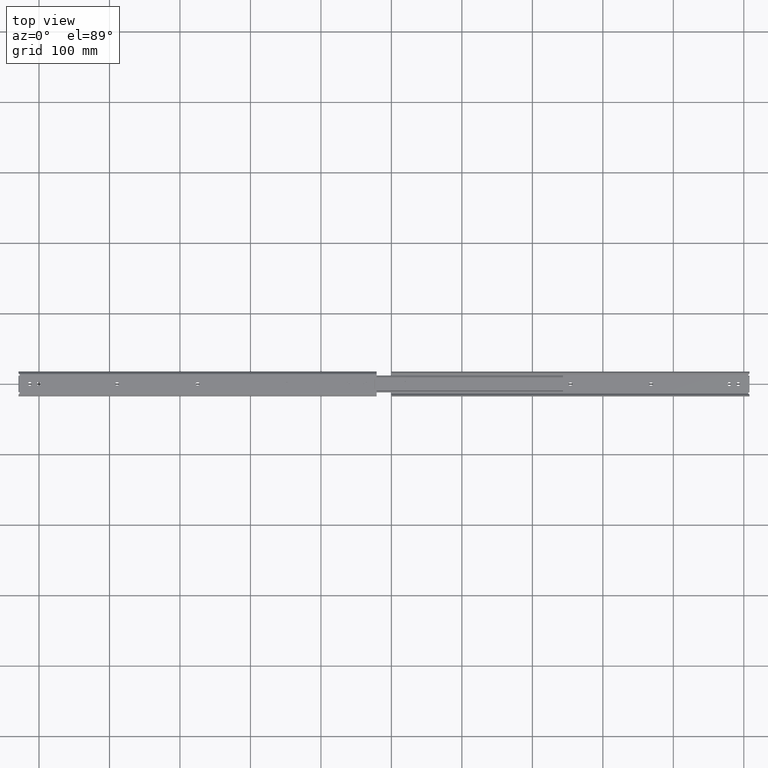
[diagram: clean part render]
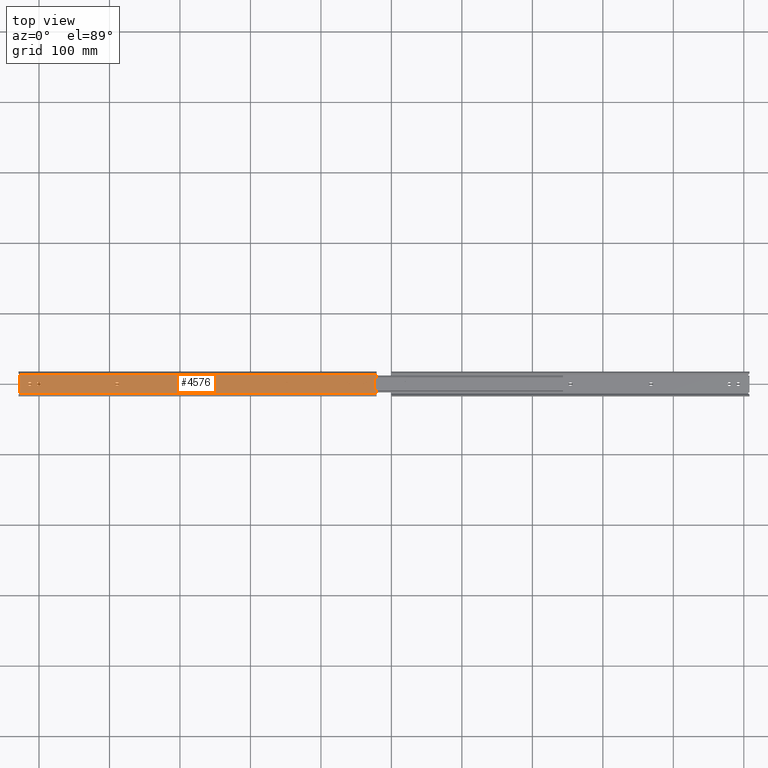
[diagram: same view with one face highlighted and labeled with its STEP entity id]
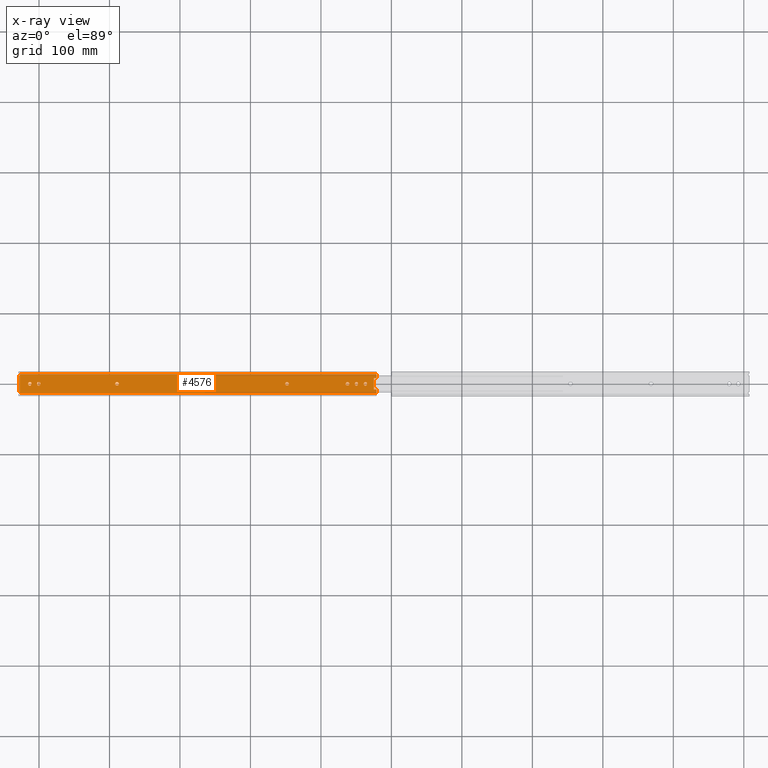
[diagram: x-ray of the same camera — body ghosted, the highlighted face saturated]
A machine part, top view. The second image highlights one B-rep face of the part: STEP entity #4576.
The next image is the same camera in x-ray: the body ghosted, the highlighted face saturated — about 0% of this face is hidden behind the body in this view.
In plain terms, the highlighted planar face has unit normal (0, 0, -1).
Its self-contained STEP definition (entity closure, byte-faithful):
#2 = CARTESIAN_POINT ( 'NONE',  ( 253.5999999999999900, 2.249999999999965800, -4.792173602385929600E-014 ) ) ;
#11 = CIRCLE ( 'NONE', #2264, 2.250000000000001800 ) ;
#26 = CARTESIAN_POINT ( 'NONE',  ( 3.799999999999999400, 7.000000000000000000, 7.958043946043602500E-014 ) ) ;
#30 = EDGE_CURVE ( 'NONE', #1849, #831, #4135, .T. ) ;
#38 = ORIENTED_EDGE ( 'NONE', *, *, #3426, .T. ) ;
#72 = CIRCLE ( 'NONE', #1924, 2.249999999999974200 ) ;
#108 = LINE ( 'NONE', #1090, #3909 ) ;
#114 = VECTOR ( 'NONE', #4303, 1000.000000000000000 ) ;
#117 = AXIS2_PLACEMENT_3D ( 'NONE', #971, #1335, #1395 ) ;
#120 = CARTESIAN_POINT ( 'NONE',  ( 43.95000000000000300, 3.337652803933819400E-015, -4.792173602385929600E-014 ) ) ;
#128 = EDGE_CURVE ( 'NONE', #2879, #1849, #4778, .T. ) ;
#134 = CARTESIAN_POINT ( 'NONE',  ( 368.7000000000000500, 5.082535335627669000E-014, -4.792173602385929600E-014 ) ) ;
#155 = EDGE_LOOP ( 'NONE', ( #622, #2467, #4307, #3353 ) ) ;
#171 = CARTESIAN_POINT ( 'NONE',  ( 253.5999999999999900, -1.540743955509788700E-030, -4.792173602385929600E-014 ) ) ;
#176 = CARTESIAN_POINT ( 'NONE',  ( 481.6500000000001500, 0.4000000000000903900, -4.792173602385929600E-014 ) ) ;
#177 = LINE ( 'NONE', #2938, #3979 ) ;
#202 = EDGE_CURVE ( 'NONE', #3458, #4721, #616, .T. ) ;
#203 = EDGE_CURVE ( 'NONE', #4127, #917, #3452, .T. ) ;
#204 = VERTEX_POINT ( 'NONE', #2560 ) ;
#208 = LINE ( 'NONE', #3602, #2181 ) ;
#235 = VECTOR ( 'NONE', #2144, 1000.000000000000000 ) ;
#250 = DIRECTION ( 'NONE',  ( 0.0000000000000000000, 0.0000000000000000000, 1.000000000000000000 ) ) ;
#253 = ORIENTED_EDGE ( 'NONE', *, *, #480, .T. ) ;
#254 = CARTESIAN_POINT ( 'NONE',  ( 508.0000000000000000, 13.34999999999964600, 8.001412032943022700E-014 ) ) ;
#261 = DIRECTION ( 'NONE',  ( 1.000000000000000000, 0.0000000000000000000, 0.0000000000000000000 ) ) ;
#266 = ORIENTED_EDGE ( 'NONE', *, *, #298, .T. ) ;
#271 = EDGE_LOOP ( 'NONE', ( #2364, #396, #2303, #970 ) ) ;
#275 = DIRECTION ( 'NONE',  ( 1.000000000000000000, 0.0000000000000000000, 0.0000000000000000000 ) ) ;
#280 = DIRECTION ( 'NONE',  ( 1.000000000000000000, 0.0000000000000000000, 0.0000000000000000000 ) ) ;
#294 = AXIS2_PLACEMENT_3D ( 'NONE', #4329, #2135, #4705 ) ;
#298 = EDGE_CURVE ( 'NONE', #2602, #4721, #2118, .T. ) ;
#311 = CARTESIAN_POINT ( 'NONE',  ( 481.6500000000001500, -0.3999999999999602800, -4.792173602385929600E-014 ) ) ;
#317 = DIRECTION ( 'NONE',  ( 0.0000000000000000000, 0.0000000000000000000, 1.000000000000000000 ) ) ;
#344 = LINE ( 'NONE', #254, #114 ) ;
#348 = LINE ( 'NONE', #858, #4266 ) ;
#354 = DIRECTION ( 'NONE',  ( 1.000000000000000000, 0.0000000000000000000, 0.0000000000000000000 ) ) ;
#355 = DIRECTION ( 'NONE',  ( 1.000000000000000000, 0.0000000000000000000, 0.0000000000000000000 ) ) ;
#357 = DIRECTION ( 'NONE',  ( 1.000000000000000000, 0.0000000000000000000, 0.0000000000000000000 ) ) ;
#380 = VERTEX_POINT ( 'NONE', #1041 ) ;
#381 = CARTESIAN_POINT ( 'NONE',  ( 477.1500000000000900, -0.4000000000000331100, -2.397426826350231100E-015 ) ) ;
#388 = VERTEX_POINT ( 'NONE', #381 ) ;
#396 = ORIENTED_EDGE ( 'NONE', *, *, #4519, .T. ) ;
#407 = CARTESIAN_POINT ( 'NONE',  ( 40.89999999999999100, 2.249999999999998200, -4.792173602385929600E-014 ) ) ;
#414 = DIRECTION ( 'NONE',  ( -1.000000000000000000, -0.0000000000000000000, -0.0000000000000000000 ) ) ;
#415 = CARTESIAN_POINT ( 'NONE',  ( 368.7000000000001000, 2.249999999999948900, -4.792173602385929600E-014 ) ) ;
#428 = VERTEX_POINT ( 'NONE', #3471 ) ;
#434 = DIRECTION ( 'NONE',  ( 0.0000000000000000000, 0.0000000000000000000, 1.000000000000000000 ) ) ;
#436 = EDGE_LOOP ( 'NONE', ( #693, #2832, #4311, #2348, #2418 ) ) ;
#449 = VERTEX_POINT ( 'NONE', #415 ) ;
#475 = FACE_OUTER_BOUND ( 'NONE', #4028, .T. ) ;
#480 = EDGE_CURVE ( 'NONE', #449, #559, #4399, .T. ) ;
#503 = VECTOR ( 'NONE', #2643, 1000.000000000000000 ) ;
#548 = EDGE_CURVE ( 'NONE', #1889, #4665, #1135, .T. ) ;
#559 = VERTEX_POINT ( 'NONE', #4225 ) ;
#574 = VERTEX_POINT ( 'NONE', #2656 ) ;
#581 = CIRCLE ( 'NONE', #3830, 2.250000000000001800 ) ;
#589 = CIRCLE ( 'NONE', #3469, 2.249999999999974200 ) ;
#592 = FACE_BOUND ( 'NONE', #436, .T. ) ;
#593 = VERTEX_POINT ( 'NONE', #1684 ) ;
#595 = CARTESIAN_POINT ( 'NONE',  ( 26.34999999999998400, -0.3999999999999968600, -2.397426826350014100E-015 ) ) ;
#596 = LINE ( 'NONE', #176, #2572 ) ;
#608 = VERTEX_POINT ( 'NONE', #3393 ) ;
#609 = CARTESIAN_POINT ( 'NONE',  ( 479.4000000000000300, -0.3999999999999614400, -4.792173602385929600E-014 ) ) ;
#612 = EDGE_CURVE ( 'NONE', #917, #4246, #11, .T. ) ;
#616 = CIRCLE ( 'NONE', #117, 1.300000000000078900 ) ;
#618 = CARTESIAN_POINT ( 'NONE',  ( 127.4000000000000200, 1.230082464744604100E-014, -4.792173602385929600E-014 ) ) ;
#622 = ORIENTED_EDGE ( 'NONE', *, *, #4447, .T. ) ;
#635 = DIRECTION ( 'NONE',  ( 0.0000000000000000000, 0.0000000000000000000, 1.000000000000000000 ) ) ;
#651 = DIRECTION ( 'NONE',  ( 1.000000000000000000, 0.0000000000000000000, 0.0000000000000000000 ) ) ;
#673 = ORIENTED_EDGE ( 'NONE', *, *, #2287, .T. ) ;
#693 = ORIENTED_EDGE ( 'NONE', *, *, #2033, .T. ) ;
#749 = VERTEX_POINT ( 'NONE', #4681 ) ;
#767 = LINE ( 'NONE', #4751, #4564 ) ;
#769 = VECTOR ( 'NONE', #357, 1000.000000000000000 ) ;
#781 = DIRECTION ( 'NONE',  ( -0.0000000000000000000, -1.000000000000000000, -5.993567065875081600E-015 ) ) ;
#805 = AXIS2_PLACEMENT_3D ( 'NONE', #2545, #317, #2926 ) ;
#824 = CARTESIAN_POINT ( 'NONE',  ( 18.15000000000000600, 0.3999999999999995800, -4.792173602385929600E-014 ) ) ;
#831 = VERTEX_POINT ( 'NONE', #3970 ) ;
#836 = AXIS2_PLACEMENT_3D ( 'NONE', #4782, #2586, #355 ) ;
#841 = CARTESIAN_POINT ( 'NONE',  ( 370.9499999999999900, 5.082535335627669000E-014, -4.792173602385929600E-014 ) ) ;
#843 = DIRECTION ( 'NONE',  ( 1.000000000000000000, 0.0000000000000000000, 0.0000000000000000000 ) ) ;
#855 = DIRECTION ( 'NONE',  ( -0.0000000000000000000, 1.000000000000000000, -0.0000000000000000000 ) ) ;
#858 = CARTESIAN_POINT ( 'NONE',  ( 126.5999999999999900, -2.250000000000006700, -4.792173602385929600E-014 ) ) ;
#880 = AXIS2_PLACEMENT_3D ( 'NONE', #4702, #2497, #280 ) ;
#888 = CIRCLE ( 'NONE', #3456, 2.249999999999974200 ) ;
#891 = DIRECTION ( 'NONE',  ( 1.000000000000000000, 0.0000000000000000000, 0.0000000000000000000 ) ) ;
#917 = VERTEX_POINT ( 'NONE', #595 ) ;
#941 = CIRCLE ( 'NONE', #3609, 2.250000000000001800 ) ;
#955 = CARTESIAN_POINT ( 'NONE',  ( 30.85000000000000100, -0.3999999999999980200, -4.792173602385929600E-014 ) ) ;
#968 = ORIENTED_EDGE ( 'NONE', *, *, #1396, .T. ) ;
#970 = ORIENTED_EDGE ( 'NONE', *, *, #30, .T. ) ;
#971 = CARTESIAN_POINT ( 'NONE',  ( 507.5000000000007400, -12.79999999999966100, 7.958043946043602500E-014 ) ) ;
#980 = CARTESIAN_POINT ( 'NONE',  ( 368.7000000000000500, -2.250000000000050600, -1.348552589821923700E-014 ) ) ;
#990 = EDGE_CURVE ( 'NONE', #428, #3895, #2214, .T. ) ;
#991 = DIRECTION ( 'NONE',  ( 1.000000000000000000, 0.0000000000000000000, 0.0000000000000000000 ) ) ;
#1000 = DIRECTION ( 'NONE',  ( 1.000000000000000000, 0.0000000000000000000, 0.0000000000000000000 ) ) ;
#1016 = DIRECTION ( 'NONE',  ( 1.000000000000000000, 0.0000000000000000000, 0.0000000000000000000 ) ) ;
#1037 = ORIENTED_EDGE ( 'NONE', *, *, #202, .F. ) ;
#1041 = CARTESIAN_POINT ( 'NONE',  ( 253.5999999999999900, -2.250000000000033800, -4.792173602385929600E-014 ) ) ;
#1045 = DIRECTION ( 'NONE',  ( 0.0000000000000000000, 0.0000000000000000000, 1.000000000000000000 ) ) ;
#1082 = VERTEX_POINT ( 'NONE', #311 ) ;
#1090 = CARTESIAN_POINT ( 'NONE',  ( 126.5999999999999900, 2.249999999999992900, -4.792173602385929600E-014 ) ) ;
#1095 = DIRECTION ( 'NONE',  ( -0.0000000000000000000, 1.000000000000000000, -0.0000000000000000000 ) ) ;
#1102 = CARTESIAN_POINT ( 'NONE',  ( 477.1500000000000900, 0.4000000000000338300, -4.792173602385929600E-014 ) ) ;
#1107 = VERTEX_POINT ( 'NONE', #3323 ) ;
#1109 = ORIENTED_EDGE ( 'NONE', *, *, #2384, .T. ) ;
#1128 = CIRCLE ( 'NONE', #1731, 2.250000000000029800 ) ;
#1134 = CARTESIAN_POINT ( 'NONE',  ( 41.70000000000001700, -2.250000000000001800, -1.348552589821894300E-014 ) ) ;
#1135 = CIRCLE ( 'NONE', #1279, 2.250000000000029800 ) ;
#1193 = VECTOR ( 'NONE', #855, 1000.000000000000000 ) ;
#1194 = VECTOR ( 'NONE', #1095, 1000.000000000000000 ) ;
#1235 = CIRCLE ( 'NONE', #2798, 2.250000000000001800 ) ;
#1236 = CIRCLE ( 'NONE', #3946, 2.249999999999974200 ) ;
#1276 = ORIENTED_EDGE ( 'NONE', *, *, #2611, .T. ) ;
#1279 = AXIS2_PLACEMENT_3D ( 'NONE', #3803, #3883, #2329 ) ;
#1281 = EDGE_CURVE ( 'NONE', #831, #574, #2273, .T. ) ;
#1314 = EDGE_LOOP ( 'NONE', ( #1276, #2442, #2370, #2990, #3356 ) ) ;
#1324 = CARTESIAN_POINT ( 'NONE',  ( 0.0000000000000000000, -7.999999999999998200, -4.794853652700064100E-014 ) ) ;
#1325 = ORIENTED_EDGE ( 'NONE', *, *, #1894, .F. ) ;
#1333 = ORIENTED_EDGE ( 'NONE', *, *, #2290, .T. ) ;
#1335 = DIRECTION ( 'NONE',  ( -0.0000000000000000000, -0.0000000000000000000, -1.000000000000000000 ) ) ;
#1365 = VERTEX_POINT ( 'NONE', #2341 ) ;
#1368 = AXIS2_PLACEMENT_3D ( 'NONE', #3261, #1045, #3613 ) ;
#1379 = VERTEX_POINT ( 'NONE', #120 ) ;
#1385 = EDGE_CURVE ( 'NONE', #559, #4545, #4509, .T. ) ;
#1395 = DIRECTION ( 'NONE',  ( 1.000000000000000000, 0.0000000000000000000, 0.0000000000000000000 ) ) ;
#1396 = EDGE_CURVE ( 'NONE', #3895, #380, #589, .T. ) ;
#1404 = DIRECTION ( 'NONE',  ( 0.0000000000000000000, 1.000000000000000000, 5.993567065875081600E-015 ) ) ;
#1453 = EDGE_CURVE ( 'NONE', #4665, #388, #1464, .T. ) ;
#1460 = AXIS2_PLACEMENT_3D ( 'NONE', #1992, #4559, #1618 ) ;
#1464 = LINE ( 'NONE', #4132, #2327 ) ;
#1467 = FACE_BOUND ( 'NONE', #271, .T. ) ;
#1475 = EDGE_CURVE ( 'NONE', #4594, #2768, #348, .T. ) ;
#1476 = CARTESIAN_POINT ( 'NONE',  ( 3.799999999999999400, 8.000000000000000000, 7.958043946043602500E-014 ) ) ;
#1487 = EDGE_CURVE ( 'NONE', #2813, #449, #1236, .T. ) ;
#1492 = ORIENTED_EDGE ( 'NONE', *, *, #1385, .T. ) ;
#1518 = DIRECTION ( 'NONE',  ( 1.000000000000000000, 0.0000000000000000000, 0.0000000000000000000 ) ) ;
#1553 = VERTEX_POINT ( 'NONE', #3675 ) ;
#1559 = EDGE_CURVE ( 'NONE', #380, #1553, #3707, .T. ) ;
#1576 = LINE ( 'NONE', #2877, #4257 ) ;
#1578 = EDGE_CURVE ( 'NONE', #3458, #593, #4566, .T. ) ;
#1586 = FACE_BOUND ( 'NONE', #1314, .T. ) ;
#1592 = DIRECTION ( 'NONE',  ( 1.000000000000000000, 0.0000000000000000000, 0.0000000000000000000 ) ) ;
#1606 = CARTESIAN_POINT ( 'NONE',  ( 367.8999999999999800, 2.249999999999948900, -4.792173602385929600E-014 ) ) ;
#1618 = DIRECTION ( 'NONE',  ( 1.000000000000000000, 0.0000000000000000000, 0.0000000000000000000 ) ) ;
#1621 = ORIENTED_EDGE ( 'NONE', *, *, #4280, .T. ) ;
#1622 = VECTOR ( 'NONE', #651, 1000.000000000000000 ) ;
#1638 = VERTEX_POINT ( 'NONE', #4398 ) ;
#1651 = EDGE_CURVE ( 'NONE', #1379, #1638, #3366, .T. ) ;
#1656 = CIRCLE ( 'NONE', #3965, 2.249999999999918700 ) ;
#1665 = EDGE_LOOP ( 'NONE', ( #2717, #4549, #2603, #1621 ) ) ;
#1672 = EDGE_LOOP ( 'NONE', ( #2590, #968, #2902, #3631, #1763 ) ) ;
#1680 = CARTESIAN_POINT ( 'NONE',  ( 494.3499999999999100, 0.4000000000000920000, -4.792173602385929600E-014 ) ) ;
#1684 = CARTESIAN_POINT ( 'NONE',  ( 0.0000000000000000000, -13.34999999999964600, 8.001412032943022700E-014 ) ) ;
#1693 = FACE_BOUND ( 'NONE', #1672, .T. ) ;
#1694 = CARTESIAN_POINT ( 'NONE',  ( 489.8500000000000800, 0.4000000000000345500, -4.792173602385929600E-014 ) ) ;
#1715 = EDGE_CURVE ( 'NONE', #1781, #2129, #177, .T. ) ;
#1729 = CARTESIAN_POINT ( 'NONE',  ( 253.5999999999999900, 2.249999999999965800, -4.792173602385929600E-014 ) ) ;
#1731 = AXIS2_PLACEMENT_3D ( 'NONE', #609, #3206, #991 ) ;
#1763 = ORIENTED_EDGE ( 'NONE', *, *, #4346, .T. ) ;
#1774 = ORIENTED_EDGE ( 'NONE', *, *, #1715, .T. ) ;
#1776 = VERTEX_POINT ( 'NONE', #1134 ) ;
#1781 = VERTEX_POINT ( 'NONE', #2233 ) ;
#1788 = CARTESIAN_POINT ( 'NONE',  ( 129.6500000000000100, 1.230082464744604100E-014, -4.792173602385929600E-014 ) ) ;
#1821 = CARTESIAN_POINT ( 'NONE',  ( 30.85000000000000100, 0.4000000000000040700, -4.792173602385929600E-014 ) ) ;
#1846 = DIRECTION ( 'NONE',  ( -1.355252715606880500E-016, 1.000000000000000000, -0.0000000000000000000 ) ) ;
#1849 = VERTEX_POINT ( 'NONE', #2567 ) ;
#1867 = CIRCLE ( 'NONE', #4018, 2.249999999999974200 ) ;
#1870 = CARTESIAN_POINT ( 'NONE',  ( 13.65000000000000000, 0.3999999999999968000, -4.792173602385929600E-014 ) ) ;
#1881 = EDGE_CURVE ( 'NONE', #2768, #2124, #1235, .T. ) ;
#1887 = CIRCLE ( 'NONE', #836, 2.250000000000001800 ) ;
#1889 = VERTEX_POINT ( 'NONE', #2846 ) ;
#1890 = EDGE_CURVE ( 'NONE', #2124, #749, #3082, .T. ) ;
#1894 = EDGE_CURVE ( 'NONE', #4103, #3836, #344, .T. ) ;
#1906 = VERTEX_POINT ( 'NONE', #2120 ) ;
#1924 = AXIS2_PLACEMENT_3D ( 'NONE', #2666, #434, #3039 ) ;
#1956 = EDGE_CURVE ( 'NONE', #1553, #3403, #1867, .T. ) ;
#1962 = ORIENTED_EDGE ( 'NONE', *, *, #2319, .T. ) ;
#1977 = EDGE_CURVE ( 'NONE', #593, #2415, #767, .T. ) ;
#1992 = CARTESIAN_POINT ( 'NONE',  ( 15.90000000000000000, -0.3999999999999997400, -4.792173602385929600E-014 ) ) ;
#2033 = EDGE_CURVE ( 'NONE', #1638, #3960, #3758, .T. ) ;
#2064 = DIRECTION ( 'NONE',  ( 0.0000000000000000000, 0.0000000000000000000, 1.000000000000000000 ) ) ;
#2086 = CARTESIAN_POINT ( 'NONE',  ( 40.89999999999999100, 3.239681060002030200E-015, -4.792173602385929600E-014 ) ) ;
#2088 = CARTESIAN_POINT ( 'NONE',  ( 0.0000000000000000000, 8.000000000000000000, 7.958043946043602500E-014 ) ) ;
#2118 = LINE ( 'NONE', #3291, #3006 ) ;
#2120 = CARTESIAN_POINT ( 'NONE',  ( 3.799999999999999400, 8.000000000000000000, 7.958043946043602500E-014 ) ) ;
#2124 = VERTEX_POINT ( 'NONE', #1788 ) ;
#2129 = VERTEX_POINT ( 'NONE', #3978 ) ;
#2131 = VERTEX_POINT ( 'NONE', #2521 ) ;
#2135 = DIRECTION ( 'NONE',  ( 0.0000000000000000000, -5.993567065875081600E-015, 1.000000000000000000 ) ) ;
#2144 = DIRECTION ( 'NONE',  ( -1.000000000000000000, -0.0000000000000000000, -0.0000000000000000000 ) ) ;
#2156 = DIRECTION ( 'NONE',  ( 0.0000000000000000000, 0.0000000000000000000, 1.000000000000000000 ) ) ;
#2181 = VECTOR ( 'NONE', #1404, 1000.000000000000000 ) ;
#2214 = LINE ( 'NONE', #1729, #235 ) ;
#2220 = CARTESIAN_POINT ( 'NONE',  ( 506.3999999999999800, -12.10717967697326200, 7.958043946043602500E-014 ) ) ;
#2225 = EDGE_CURVE ( 'NONE', #1906, #204, #2843, .T. ) ;
#2233 = CARTESIAN_POINT ( 'NONE',  ( 3.800000000000001600, -8.000000000000000000, 7.958043946043602500E-014 ) ) ;
#2238 = ORIENTED_EDGE ( 'NONE', *, *, #2523, .T. ) ;
#2250 = ORIENTED_EDGE ( 'NONE', *, *, #2225, .T. ) ;
#2262 = VECTOR ( 'NONE', #2909, 1000.000000000000000 ) ;
#2264 = AXIS2_PLACEMENT_3D ( 'NONE', #3518, #2064, #891 ) ;
#2273 = LINE ( 'NONE', #824, #1193 ) ;
#2287 = EDGE_CURVE ( 'NONE', #4103, #2602, #3470, .T. ) ;
#2290 = EDGE_CURVE ( 'NONE', #4373, #2420, #2476, .T. ) ;
#2303 = ORIENTED_EDGE ( 'NONE', *, *, #128, .T. ) ;
#2319 = EDGE_CURVE ( 'NONE', #2129, #3615, #3361, .T. ) ;
#2327 = VECTOR ( 'NONE', #3782, 1000.000000000000000 ) ;
#2329 = DIRECTION ( 'NONE',  ( 1.000000000000000000, 0.0000000000000000000, 0.0000000000000000000 ) ) ;
#2341 = CARTESIAN_POINT ( 'NONE',  ( 40.89999999999999100, -2.250000000000001800, -4.792173602385929600E-014 ) ) ;
#2348 = ORIENTED_EDGE ( 'NONE', *, *, #3845, .T. ) ;
#2355 = DIRECTION ( 'NONE',  ( 0.0000000000000000000, 0.0000000000000000000, 1.000000000000000000 ) ) ;
#2364 = ORIENTED_EDGE ( 'NONE', *, *, #1281, .T. ) ;
#2370 = ORIENTED_EDGE ( 'NONE', *, *, #1475, .T. ) ;
#2384 = EDGE_CURVE ( 'NONE', #4542, #4373, #3857, .T. ) ;
#2411 = EDGE_LOOP ( 'NONE', ( #253, #1492, #2238, #3790, #2940 ) ) ;
#2415 = VERTEX_POINT ( 'NONE', #1324 ) ;
#2418 = ORIENTED_EDGE ( 'NONE', *, *, #1651, .T. ) ;
#2420 = VERTEX_POINT ( 'NONE', #1694 ) ;
#2430 = FACE_BOUND ( 'NONE', #155, .T. ) ;
#2442 = ORIENTED_EDGE ( 'NONE', *, *, #2499, .T. ) ;
#2443 = DIRECTION ( 'NONE',  ( 1.000000000000000000, 0.0000000000000000000, 0.0000000000000000000 ) ) ;
#2446 = CARTESIAN_POINT ( 'NONE',  ( 40.89999999999999100, 2.249999999999998200, -4.792173602385929600E-014 ) ) ;
#2447 = CARTESIAN_POINT ( 'NONE',  ( 489.8500000000000800, 0.4000000000000345500, -4.792173602385929600E-014 ) ) ;
#2458 = VERTEX_POINT ( 'NONE', #980 ) ;
#2467 = ORIENTED_EDGE ( 'NONE', *, *, #4603, .T. ) ;
#2468 = CARTESIAN_POINT ( 'NONE',  ( 15.89999999999999700, 0.3999999999999997400, -4.792173602385929600E-014 ) ) ;
#2476 = CIRCLE ( 'NONE', #1368, 2.249999999999918700 ) ;
#2478 = DIRECTION ( 'NONE',  ( 0.0000000000000000000, 0.0000000000000000000, 1.000000000000000000 ) ) ;
#2480 = CARTESIAN_POINT ( 'NONE',  ( 367.8999999999999800, -2.250000000000050600, -4.792173602385929600E-014 ) ) ;
#2497 = DIRECTION ( 'NONE',  ( 0.0000000000000000000, 0.0000000000000000000, 1.000000000000000000 ) ) ;
#2499 = EDGE_CURVE ( 'NONE', #2131, #4594, #581, .T. ) ;
#2500 = CARTESIAN_POINT ( 'NONE',  ( 126.5999999999999900, -2.250000000000006700, -4.792173602385929600E-014 ) ) ;
#2502 = CARTESIAN_POINT ( 'NONE',  ( 1.708415533803517000E-015, -8.000000000000000000, 7.958043946043602500E-014 ) ) ;
#2515 = CARTESIAN_POINT ( 'NONE',  ( 126.5999999999999900, 1.215386703154835400E-014, -4.792173602385929600E-014 ) ) ;
#2521 = CARTESIAN_POINT ( 'NONE',  ( 126.5999999999999900, 2.249999999999992900, -4.792173602385929600E-014 ) ) ;
#2522 = CARTESIAN_POINT ( 'NONE',  ( 506.3220781010616600, -13.34999999999963900, 7.958043946043602500E-014 ) ) ;
#2523 = EDGE_CURVE ( 'NONE', #4545, #2458, #1576, .T. ) ;
#2534 = ORIENTED_EDGE ( 'NONE', *, *, #2637, .T. ) ;
#2537 = CARTESIAN_POINT ( 'NONE',  ( 41.70000000000000300, 3.337652803933819400E-015, -4.792173602385929600E-014 ) ) ;
#2545 = CARTESIAN_POINT ( 'NONE',  ( 28.59999999999999800, 0.4000000000000038000, -4.792173602385929600E-014 ) ) ;
#2552 = DIRECTION ( 'NONE',  ( 0.0000000000000000000, 1.000000000000000000, 5.993567065875081600E-015 ) ) ;
#2555 = CARTESIAN_POINT ( 'NONE',  ( 506.3999999999999800, 12.10717967697326200, 7.958043946043602500E-014 ) ) ;
#2560 = CARTESIAN_POINT ( 'NONE',  ( 0.0000000000000000000, 8.000000000000000000, 7.958043946043602500E-014 ) ) ;
#2567 = CARTESIAN_POINT ( 'NONE',  ( 13.64999999999999500, -0.3999999999999964700, -2.397426826350011800E-015 ) ) ;
#2572 = VECTOR ( 'NONE', #2771, 1000.000000000000000 ) ;
#2584 = DIRECTION ( 'NONE',  ( 0.0000000000000000000, 0.0000000000000000000, 1.000000000000000000 ) ) ;
#2586 = DIRECTION ( 'NONE',  ( 0.0000000000000000000, 0.0000000000000000000, 1.000000000000000000 ) ) ;
#2590 = ORIENTED_EDGE ( 'NONE', *, *, #990, .T. ) ;
#2591 = DIRECTION ( 'NONE',  ( 0.0000000000000000000, -1.000000000000000000, 0.0000000000000000000 ) ) ;
#2600 = CARTESIAN_POINT ( 'NONE',  ( 253.5999999999999900, -2.250000000000033800, -4.792173602385929600E-014 ) ) ;
#2602 = VERTEX_POINT ( 'NONE', #2555 ) ;
#2603 = ORIENTED_EDGE ( 'NONE', *, *, #1453, .T. ) ;
#2611 = EDGE_CURVE ( 'NONE', #749, #2131, #108, .T. ) ;
#2618 = VECTOR ( 'NONE', #4434, 1000.000000000000000 ) ;
#2637 = EDGE_CURVE ( 'NONE', #3615, #1906, #3806, .T. ) ;
#2641 = DIRECTION ( 'NONE',  ( 1.000000000000000000, 0.0000000000000000000, 0.0000000000000000000 ) ) ;
#2643 = DIRECTION ( 'NONE',  ( 0.0000000000000000000, -1.000000000000000000, 0.0000000000000000000 ) ) ;
#2656 = CARTESIAN_POINT ( 'NONE',  ( 18.15000000000000600, 0.3999999999999995800, -4.792173602385929600E-014 ) ) ;
#2666 = CARTESIAN_POINT ( 'NONE',  ( 368.7000000000000500, 5.082535335627669000E-014, -4.792173602385929600E-014 ) ) ;
#2710 = CARTESIAN_POINT ( 'NONE',  ( 506.3220781010616600, 13.34999999999963900, 7.958043946043602500E-014 ) ) ;
#2717 = ORIENTED_EDGE ( 'NONE', *, *, #4180, .T. ) ;
#2718 = LINE ( 'NONE', #2502, #1622 ) ;
#2727 = AXIS2_PLACEMENT_3D ( 'NONE', #2086, #4653, #2443 ) ;
#2768 = VERTEX_POINT ( 'NONE', #4118 ) ;
#2771 = DIRECTION ( 'NONE',  ( -0.0000000000000000000, 1.000000000000000000, -0.0000000000000000000 ) ) ;
#2798 = AXIS2_PLACEMENT_3D ( 'NONE', #618, #3212, #1000 ) ;
#2813 = VERTEX_POINT ( 'NONE', #841 ) ;
#2832 = ORIENTED_EDGE ( 'NONE', *, *, #4272, .T. ) ;
#2838 = DIRECTION ( 'NONE',  ( -1.000000000000000000, -0.0000000000000000000, -0.0000000000000000000 ) ) ;
#2843 = LINE ( 'NONE', #2088, #3703 ) ;
#2846 = CARTESIAN_POINT ( 'NONE',  ( 481.6500000000001500, 0.4000000000000903900, -4.792173602385929600E-014 ) ) ;
#2857 = DIRECTION ( 'NONE',  ( 1.000000000000000000, 0.0000000000000000000, 0.0000000000000000000 ) ) ;
#2864 = CARTESIAN_POINT ( 'NONE',  ( 127.4000000000000200, 1.230082464744604100E-014, -4.792173602385929600E-014 ) ) ;
#2871 = PLANE ( 'NONE',  #294 ) ;
#2877 = CARTESIAN_POINT ( 'NONE',  ( 367.8999999999999800, -2.250000000000050600, -4.792173602385929600E-014 ) ) ;
#2879 = VERTEX_POINT ( 'NONE', #4556 ) ;
#2887 = EDGE_LOOP ( 'NONE', ( #1109, #1333, #4251, #4659 ) ) ;
#2900 = AXIS2_PLACEMENT_3D ( 'NONE', #2537, #2919, #2641 ) ;
#2902 = ORIENTED_EDGE ( 'NONE', *, *, #1559, .T. ) ;
#2909 = DIRECTION ( 'NONE',  ( -1.239088197126290800E-016, 1.000000000000000000, 5.993567065875081600E-015 ) ) ;
#2919 = DIRECTION ( 'NONE',  ( 0.0000000000000000000, 0.0000000000000000000, 1.000000000000000000 ) ) ;
#2926 = DIRECTION ( 'NONE',  ( 1.000000000000000000, 0.0000000000000000000, 0.0000000000000000000 ) ) ;
#2938 = CARTESIAN_POINT ( 'NONE',  ( 3.799999999999999400, 8.000000000000000000, 7.958043946043602500E-014 ) ) ;
#2940 = ORIENTED_EDGE ( 'NONE', *, *, #1487, .T. ) ;
#2948 = VECTOR ( 'NONE', #2591, 1000.000000000000000 ) ;
#2957 = CARTESIAN_POINT ( 'NONE',  ( 508.0000000000000000, -13.34999999999964600, 8.001412032943022700E-014 ) ) ;
#2990 = ORIENTED_EDGE ( 'NONE', *, *, #1881, .T. ) ;
#2997 = DIRECTION ( 'NONE',  ( 0.0000000000000000000, 0.0000000000000000000, 1.000000000000000000 ) ) ;
#3006 = VECTOR ( 'NONE', #781, 1000.000000000000000 ) ;
#3023 = VECTOR ( 'NONE', #4232, 1000.000000000000000 ) ;
#3039 = DIRECTION ( 'NONE',  ( 1.000000000000000000, 0.0000000000000000000, 0.0000000000000000000 ) ) ;
#3060 = CARTESIAN_POINT ( 'NONE',  ( 367.8999999999999800, -1.540743955509788700E-030, -4.792173602385929600E-014 ) ) ;
#3082 = CIRCLE ( 'NONE', #3301, 2.250000000000001800 ) ;
#3124 = EDGE_CURVE ( 'NONE', #2415, #1781, #2718, .T. ) ;
#3206 = DIRECTION ( 'NONE',  ( 0.0000000000000000000, 0.0000000000000000000, 1.000000000000000000 ) ) ;
#3212 = DIRECTION ( 'NONE',  ( 0.0000000000000000000, 0.0000000000000000000, 1.000000000000000000 ) ) ;
#3231 = AXIS2_PLACEMENT_3D ( 'NONE', #3060, #4541, #4560 ) ;
#3235 = DIRECTION ( 'NONE',  ( 1.000000000000000000, 0.0000000000000000000, 0.0000000000000000000 ) ) ;
#3236 = DIRECTION ( 'NONE',  ( 0.0000000000000000000, 0.0000000000000000000, 1.000000000000000000 ) ) ;
#3261 = CARTESIAN_POINT ( 'NONE',  ( 492.1000000000000200, 0.4000000000000916700, -4.792173602385929600E-014 ) ) ;
#3291 = CARTESIAN_POINT ( 'NONE',  ( 506.3999999999999800, -11.49999999999984700, -6.892602125756252300E-014 ) ) ;
#3299 = LINE ( 'NONE', #2447, #4137 ) ;
#3301 = AXIS2_PLACEMENT_3D ( 'NONE', #2864, #635, #3235 ) ;
#3308 = DIRECTION ( 'NONE',  ( -1.000000000000000000, -0.0000000000000000000, -0.0000000000000000000 ) ) ;
#3323 = CARTESIAN_POINT ( 'NONE',  ( 489.8500000000000800, -0.4000000000000335000, -2.397426826350233800E-015 ) ) ;
#3353 = ORIENTED_EDGE ( 'NONE', *, *, #612, .T. ) ;
#3356 = ORIENTED_EDGE ( 'NONE', *, *, #1890, .T. ) ;
#3361 = LINE ( 'NONE', #3975, #2262 ) ;
#3366 = CIRCLE ( 'NONE', #2900, 2.250000000000001800 ) ;
#3392 = EDGE_CURVE ( 'NONE', #2420, #1107, #3299, .T. ) ;
#3393 = CARTESIAN_POINT ( 'NONE',  ( 30.85000000000000100, 0.4000000000000040700, -4.792173602385929600E-014 ) ) ;
#3403 = VERTEX_POINT ( 'NONE', #4675 ) ;
#3424 = FACE_BOUND ( 'NONE', #1665, .T. ) ;
#3426 = EDGE_CURVE ( 'NONE', #204, #3836, #208, .T. ) ;
#3452 = LINE ( 'NONE', #4758, #503 ) ;
#3456 = AXIS2_PLACEMENT_3D ( 'NONE', #4690, #2478, #261 ) ;
#3458 = VERTEX_POINT ( 'NONE', #2522 ) ;
#3469 = AXIS2_PLACEMENT_3D ( 'NONE', #171, #2355, #1592 ) ;
#3470 = CIRCLE ( 'NONE', #880, 1.300000000000078900 ) ;
#3471 = CARTESIAN_POINT ( 'NONE',  ( 254.4000000000000100, 2.249999999999965800, -4.792173602385929600E-014 ) ) ;
#3486 = VECTOR ( 'NONE', #1518, 1000.000000000000000 ) ;
#3490 = CARTESIAN_POINT ( 'NONE',  ( 0.0000000000000000000, 13.34999999999964600, 8.001412032943022700E-014 ) ) ;
#3518 = CARTESIAN_POINT ( 'NONE',  ( 28.60000000000000100, -0.3999999999999991300, -4.792173602385929600E-014 ) ) ;
#3537 = FACE_BOUND ( 'NONE', #2411, .T. ) ;
#3544 = EDGE_CURVE ( 'NONE', #1107, #4542, #1656, .T. ) ;
#3576 = DIRECTION ( 'NONE',  ( 0.0000000000000000000, -1.000000000000000000, 0.0000000000000000000 ) ) ;
#3597 = LINE ( 'NONE', #4440, #3486 ) ;
#3602 = CARTESIAN_POINT ( 'NONE',  ( 0.0000000000000000000, 0.0000000000000000000, 0.0000000000000000000 ) ) ;
#3609 = AXIS2_PLACEMENT_3D ( 'NONE', #2468, #250, #2857 ) ;
#3613 = DIRECTION ( 'NONE',  ( 1.000000000000000000, 0.0000000000000000000, 0.0000000000000000000 ) ) ;
#3615 = VERTEX_POINT ( 'NONE', #26 ) ;
#3631 = ORIENTED_EDGE ( 'NONE', *, *, #1956, .T. ) ;
#3673 = EDGE_CURVE ( 'NONE', #2458, #2813, #72, .T. ) ;
#3675 = CARTESIAN_POINT ( 'NONE',  ( 254.4000000000000100, -2.250000000000033800, -1.348552589821913600E-014 ) ) ;
#3699 = VECTOR ( 'NONE', #1846, 1000.000000000000000 ) ;
#3703 = VECTOR ( 'NONE', #2838, 1000.000000000000000 ) ;
#3707 = LINE ( 'NONE', #2600, #769 ) ;
#3758 = LINE ( 'NONE', #2446, #4620 ) ;
#3782 = DIRECTION ( 'NONE',  ( 0.0000000000000000000, -1.000000000000000000, 0.0000000000000000000 ) ) ;
#3790 = ORIENTED_EDGE ( 'NONE', *, *, #3673, .T. ) ;
#3803 = CARTESIAN_POINT ( 'NONE',  ( 479.4000000000000300, 0.4000000000000901200, -4.792173602385929600E-014 ) ) ;
#3806 = LINE ( 'NONE', #1476, #3699 ) ;
#3830 = AXIS2_PLACEMENT_3D ( 'NONE', #2515, #3236, #1016 ) ;
#3836 = VERTEX_POINT ( 'NONE', #3490 ) ;
#3845 = EDGE_CURVE ( 'NONE', #1776, #1379, #1887, .T. ) ;
#3857 = LINE ( 'NONE', #1680, #3023 ) ;
#3883 = DIRECTION ( 'NONE',  ( 0.0000000000000000000, 0.0000000000000000000, 1.000000000000000000 ) ) ;
#3895 = VERTEX_POINT ( 'NONE', #2 ) ;
#3909 = VECTOR ( 'NONE', #3308, 1000.000000000000000 ) ;
#3927 = CIRCLE ( 'NONE', #2727, 2.250000000000001800 ) ;
#3935 = EDGE_CURVE ( 'NONE', #1365, #1776, #3597, .T. ) ;
#3946 = AXIS2_PLACEMENT_3D ( 'NONE', #134, #2997, #4042 ) ;
#3960 = VERTEX_POINT ( 'NONE', #407 ) ;
#3965 = AXIS2_PLACEMENT_3D ( 'NONE', #4781, #2584, #354 ) ;
#3970 = CARTESIAN_POINT ( 'NONE',  ( 18.15000000000000600, -0.3999999999999995800, -4.792173602385929600E-014 ) ) ;
#3975 = CARTESIAN_POINT ( 'NONE',  ( 3.799999999999999400, 7.000000000000000000, 4.195496946112557100E-014 ) ) ;
#3978 = CARTESIAN_POINT ( 'NONE',  ( 3.800000000000001600, -6.999999999999999100, 7.958043946043602500E-014 ) ) ;
#3979 = VECTOR ( 'NONE', #4763, 1000.000000000000000 ) ;
#3987 = LINE ( 'NONE', #1821, #1194 ) ;
#4018 = AXIS2_PLACEMENT_3D ( 'NONE', #4357, #2156, #4729 ) ;
#4028 = EDGE_LOOP ( 'NONE', ( #1774, #1962, #2534, #2250, #38, #1325, #673, #266, #1037, #4607, #4366, #4086 ) ) ;
#4042 = DIRECTION ( 'NONE',  ( 1.000000000000000000, 0.0000000000000000000, 0.0000000000000000000 ) ) ;
#4086 = ORIENTED_EDGE ( 'NONE', *, *, #3124, .T. ) ;
#4103 = VERTEX_POINT ( 'NONE', #2710 ) ;
#4118 = CARTESIAN_POINT ( 'NONE',  ( 127.4000000000000200, -2.250000000000006700, -1.348552589821897500E-014 ) ) ;
#4127 = VERTEX_POINT ( 'NONE', #4174 ) ;
#4132 = CARTESIAN_POINT ( 'NONE',  ( 477.1500000000000900, 0.4000000000000338300, -4.792173602385929600E-014 ) ) ;
#4135 = CIRCLE ( 'NONE', #1460, 2.250000000000001800 ) ;
#4137 = VECTOR ( 'NONE', #3576, 1000.000000000000000 ) ;
#4158 = CIRCLE ( 'NONE', #805, 2.249999999999998700 ) ;
#4174 = CARTESIAN_POINT ( 'NONE',  ( 26.35000000000000100, 0.3999999999999965800, -4.792173602385929600E-014 ) ) ;
#4180 = EDGE_CURVE ( 'NONE', #1082, #1889, #596, .T. ) ;
#4225 = CARTESIAN_POINT ( 'NONE',  ( 367.8999999999999800, 2.249999999999948900, -4.792173602385929600E-014 ) ) ;
#4232 = DIRECTION ( 'NONE',  ( -0.0000000000000000000, 1.000000000000000000, -0.0000000000000000000 ) ) ;
#4246 = VERTEX_POINT ( 'NONE', #955 ) ;
#4251 = ORIENTED_EDGE ( 'NONE', *, *, #3392, .T. ) ;
#4257 = VECTOR ( 'NONE', #275, 1000.000000000000000 ) ;
#4266 = VECTOR ( 'NONE', #843, 1000.000000000000000 ) ;
#4272 = EDGE_CURVE ( 'NONE', #3960, #1365, #3927, .T. ) ;
#4277 = VECTOR ( 'NONE', #414, 1000.000000000000000 ) ;
#4280 = EDGE_CURVE ( 'NONE', #388, #1082, #1128, .T. ) ;
#4303 = DIRECTION ( 'NONE',  ( -1.000000000000000000, -0.0000000000000000000, -0.0000000000000000000 ) ) ;
#4307 = ORIENTED_EDGE ( 'NONE', *, *, #203, .T. ) ;
#4311 = ORIENTED_EDGE ( 'NONE', *, *, #3935, .T. ) ;
#4316 = CARTESIAN_POINT ( 'NONE',  ( 494.3499999999999100, -0.3999999999999586700, -4.792173602385929600E-014 ) ) ;
#4327 = CARTESIAN_POINT ( 'NONE',  ( 494.3499999999999100, 0.4000000000000920000, -4.792173602385929600E-014 ) ) ;
#4329 = CARTESIAN_POINT ( 'NONE',  ( 508.0000000000000000, 0.0000000000000000000, 0.0000000000000000000 ) ) ;
#4346 = EDGE_CURVE ( 'NONE', #3403, #428, #888, .T. ) ;
#4357 = CARTESIAN_POINT ( 'NONE',  ( 254.4000000000000600, 1.507836666562150000E-012, -4.792173602385929600E-014 ) ) ;
#4366 = ORIENTED_EDGE ( 'NONE', *, *, #1977, .T. ) ;
#4373 = VERTEX_POINT ( 'NONE', #4327 ) ;
#4390 = FACE_BOUND ( 'NONE', #2887, .T. ) ;
#4398 = CARTESIAN_POINT ( 'NONE',  ( 41.70000000000000300, 2.249999999999998200, -4.792173602385929600E-014 ) ) ;
#4399 = LINE ( 'NONE', #1606, #4277 ) ;
#4434 = DIRECTION ( 'NONE',  ( -1.000000000000000000, -0.0000000000000000000, -0.0000000000000000000 ) ) ;
#4440 = CARTESIAN_POINT ( 'NONE',  ( 40.89999999999999100, -2.250000000000001800, -4.792173602385929600E-014 ) ) ;
#4447 = EDGE_CURVE ( 'NONE', #4246, #608, #3987, .T. ) ;
#4509 = CIRCLE ( 'NONE', #3231, 2.249999999999974200 ) ;
#4519 = EDGE_CURVE ( 'NONE', #574, #2879, #941, .T. ) ;
#4541 = DIRECTION ( 'NONE',  ( 0.0000000000000000000, 0.0000000000000000000, 1.000000000000000000 ) ) ;
#4542 = VERTEX_POINT ( 'NONE', #4316 ) ;
#4545 = VERTEX_POINT ( 'NONE', #2480 ) ;
#4549 = ORIENTED_EDGE ( 'NONE', *, *, #548, .T. ) ;
#4556 = CARTESIAN_POINT ( 'NONE',  ( 13.65000000000000000, 0.3999999999999968000, -4.792173602385929600E-014 ) ) ;
#4559 = DIRECTION ( 'NONE',  ( 0.0000000000000000000, 0.0000000000000000000, 1.000000000000000000 ) ) ;
#4560 = DIRECTION ( 'NONE',  ( 1.000000000000000000, 0.0000000000000000000, 0.0000000000000000000 ) ) ;
#4564 = VECTOR ( 'NONE', #2552, 1000.000000000000000 ) ;
#4566 = LINE ( 'NONE', #2957, #2618 ) ;
#4576 = ADVANCED_FACE ( 'NONE', ( #3537, #1693, #1586, #592, #4390, #3424, #2430, #1467, #475 ), #2871, .F. ) ;
#4594 = VERTEX_POINT ( 'NONE', #2500 ) ;
#4603 = EDGE_CURVE ( 'NONE', #608, #4127, #4158, .T. ) ;
#4607 = ORIENTED_EDGE ( 'NONE', *, *, #1578, .T. ) ;
#4620 = VECTOR ( 'NONE', #4661, 1000.000000000000000 ) ;
#4653 = DIRECTION ( 'NONE',  ( 0.0000000000000000000, 0.0000000000000000000, 1.000000000000000000 ) ) ;
#4659 = ORIENTED_EDGE ( 'NONE', *, *, #3544, .T. ) ;
#4661 = DIRECTION ( 'NONE',  ( -1.000000000000000000, -0.0000000000000000000, -0.0000000000000000000 ) ) ;
#4665 = VERTEX_POINT ( 'NONE', #1102 ) ;
#4675 = CARTESIAN_POINT ( 'NONE',  ( 256.6500000000000300, 1.507836666562150000E-012, -4.792173602385929600E-014 ) ) ;
#4681 = CARTESIAN_POINT ( 'NONE',  ( 127.4000000000000200, 2.249999999999992900, -4.792173602385929600E-014 ) ) ;
#4690 = CARTESIAN_POINT ( 'NONE',  ( 254.4000000000000600, 1.507836666562150000E-012, -4.792173602385929600E-014 ) ) ;
#4702 = CARTESIAN_POINT ( 'NONE',  ( 507.5000000000007400, 12.79999999999966100, 7.958043946043602500E-014 ) ) ;
#4705 = DIRECTION ( 'NONE',  ( 0.0000000000000000000, -1.000000000000000000, -5.993567065875081600E-015 ) ) ;
#4721 = VERTEX_POINT ( 'NONE', #2220 ) ;
#4729 = DIRECTION ( 'NONE',  ( 1.000000000000000000, 0.0000000000000000000, 0.0000000000000000000 ) ) ;
#4751 = CARTESIAN_POINT ( 'NONE',  ( 0.0000000000000000000, 0.0000000000000000000, 0.0000000000000000000 ) ) ;
#4758 = CARTESIAN_POINT ( 'NONE',  ( 26.35000000000000100, 0.3999999999999965800, -4.792173602385929600E-014 ) ) ;
#4763 = DIRECTION ( 'NONE',  ( -1.355252715606880500E-016, 1.000000000000000000, -0.0000000000000000000 ) ) ;
#4778 = LINE ( 'NONE', #1870, #2948 ) ;
#4781 = CARTESIAN_POINT ( 'NONE',  ( 492.1000000000000200, -0.3999999999999598300, -4.792173602385929600E-014 ) ) ;
#4782 = CARTESIAN_POINT ( 'NONE',  ( 41.70000000000000300, 3.337652803933819400E-015, -4.792173602385929600E-014 ) ) ;